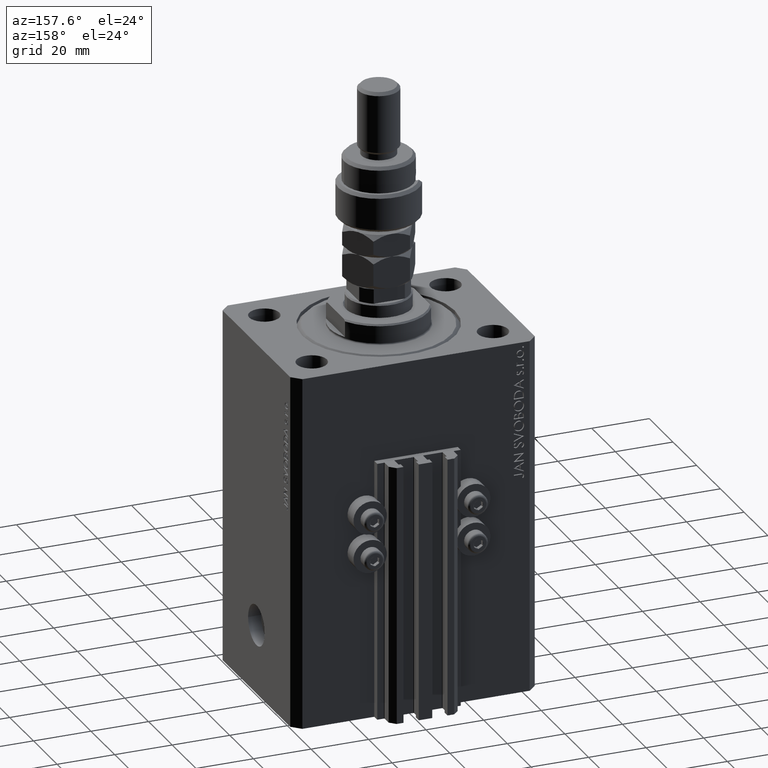
[diagram: clean part render]
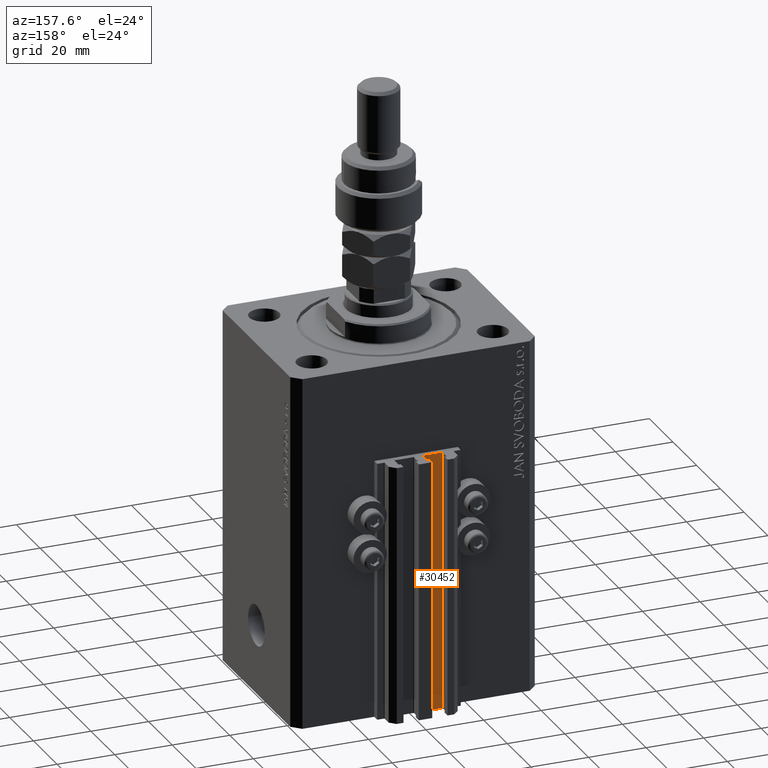
[diagram: same view with one face highlighted and labeled with its STEP entity id]
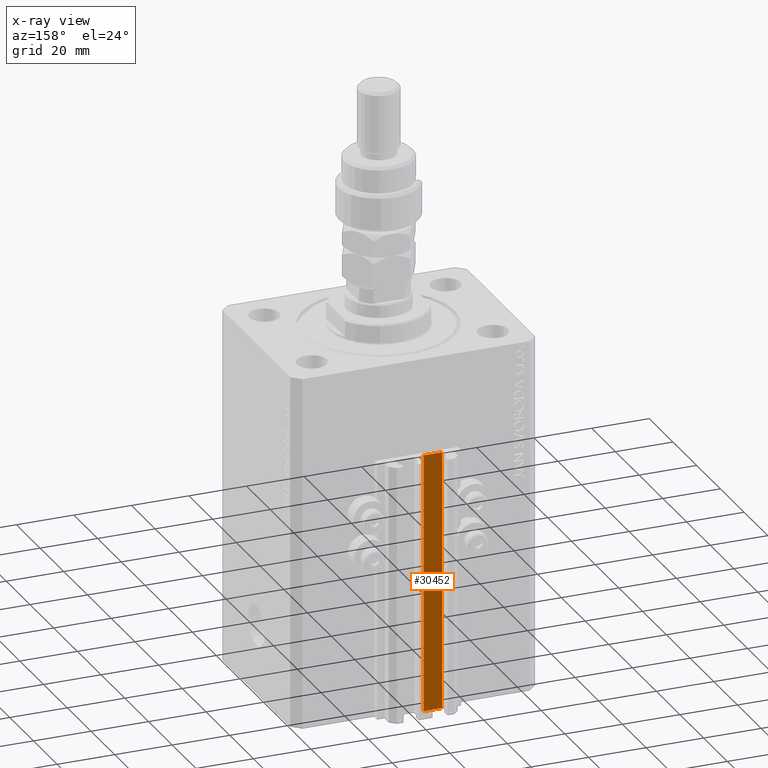
[diagram: x-ray of the same camera — body ghosted, the highlighted face saturated]
A machine part, auxiliary view. The second image highlights one B-rep face of the part: STEP entity #30452.
The next image is the same camera in x-ray: the body ghosted, the highlighted face saturated — about 0% of this face is hidden behind the body in this view.
In plain terms, the highlighted planar face has unit normal (0, 1, 0).
Its self-contained STEP definition (entity closure, byte-faithful):
#52 = PLANE ( 'NONE',  #27105 ) ;
#493 = LINE ( 'NONE', #8341, #14383 ) ;
#821 = VERTEX_POINT ( 'NONE', #24366 ) ;
#1559 = LINE ( 'NONE', #17272, #20690 ) ;
#2001 = VECTOR ( 'NONE', #35370, 1000.000000000000000 ) ;
#3706 = ORIENTED_EDGE ( 'NONE', *, *, #8984, .F. ) ;
#4272 = VERTEX_POINT ( 'NONE', #49745 ) ;
#7893 = DIRECTION ( 'NONE',  ( 0.000000000000000000, 1.000000000000000000, -0.000000000000000000 ) ) ;
#8341 = CARTESIAN_POINT ( 'NONE',  ( -1.800000000000000933, 33.50000000000000000, -33.00000000000000000 ) ) ;
#8919 = ORIENTED_EDGE ( 'NONE', *, *, #27501, .F. ) ;
#8984 = EDGE_CURVE ( 'NONE', #24303, #23398, #493, .T. ) ;
#12910 = ORIENTED_EDGE ( 'NONE', *, *, #28687, .T. ) ;
#14383 = VECTOR ( 'NONE', #15190, 1000.000000000000000 ) ;
#14744 = VECTOR ( 'NONE', #38218, 1000.000000000000000 ) ;
#14841 = EDGE_LOOP ( 'NONE', ( #3706, #8919, #12910, #27692 ) ) ;
#15190 = DIRECTION ( 'NONE',  ( -1.000000000000000000, 0.000000000000000000, 0.000000000000000000 ) ) ;
#15494 = CARTESIAN_POINT ( 'NONE',  ( -1.800000000000000933, 33.50000000000000000, -123.0000000000000000 ) ) ;
#17272 = CARTESIAN_POINT ( 'NONE',  ( -1.800000000000000933, 33.50000000000000000, -123.0000000000000000 ) ) ;
#20690 = VECTOR ( 'NONE', #40615, 1000.000000000000000 ) ;
#21207 = EDGE_CURVE ( 'NONE', #821, #23398, #46347, .T. ) ;
#23398 = VERTEX_POINT ( 'NONE', #40733 ) ;
#24303 = VERTEX_POINT ( 'NONE', #49680 ) ;
#24366 = CARTESIAN_POINT ( 'NONE',  ( -8.199999999999997513, 33.50000000000000000, -123.0000000000000000 ) ) ;
#27051 = CARTESIAN_POINT ( 'NONE',  ( -8.199999999999997513, 33.50000000000000000, -123.0000000000000000 ) ) ;
#27105 = AXIS2_PLACEMENT_3D ( 'NONE', #15494, #7893, #31236 ) ;
#27501 = EDGE_CURVE ( 'NONE', #4272, #24303, #31324, .T. ) ;
#27692 = ORIENTED_EDGE ( 'NONE', *, *, #21207, .T. ) ;
#28687 = EDGE_CURVE ( 'NONE', #4272, #821, #1559, .T. ) ;
#30452 = ADVANCED_FACE ( 'NONE', ( #30986 ), #52, .T. ) ;
#30986 = FACE_OUTER_BOUND ( 'NONE', #14841, .T. ) ;
#31236 = DIRECTION ( 'NONE',  ( 0.000000000000000000, 0.000000000000000000, 1.000000000000000000 ) ) ;
#31324 = LINE ( 'NONE', #50112, #2001 ) ;
#35370 = DIRECTION ( 'NONE',  ( 0.000000000000000000, 0.000000000000000000, 1.000000000000000000 ) ) ;
#38218 = DIRECTION ( 'NONE',  ( 0.000000000000000000, 0.000000000000000000, 1.000000000000000000 ) ) ;
#40615 = DIRECTION ( 'NONE',  ( -1.000000000000000000, 0.000000000000000000, 0.000000000000000000 ) ) ;
#40733 = CARTESIAN_POINT ( 'NONE',  ( -8.199999999999997513, 33.50000000000000000, -33.00000000000000000 ) ) ;
#46347 = LINE ( 'NONE', #27051, #14744 ) ;
#49680 = CARTESIAN_POINT ( 'NONE',  ( -1.800000000000000933, 33.50000000000000000, -33.00000000000000000 ) ) ;
#49745 = CARTESIAN_POINT ( 'NONE',  ( -1.800000000000000933, 33.50000000000000000, -123.0000000000000000 ) ) ;
#50112 = CARTESIAN_POINT ( 'NONE',  ( -1.800000000000000933, 33.50000000000000000, -123.0000000000000000 ) ) ;